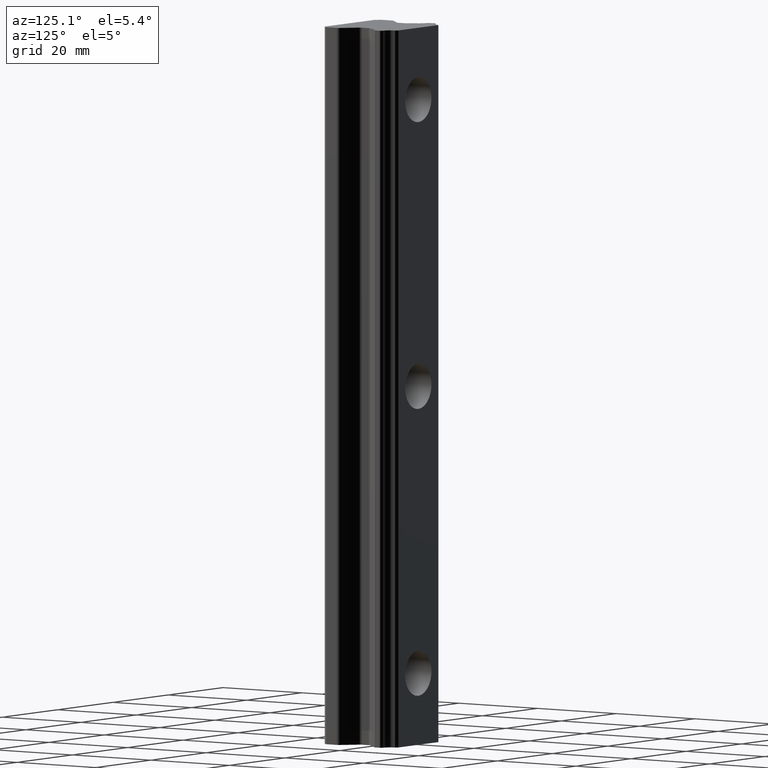
[diagram: clean part render]
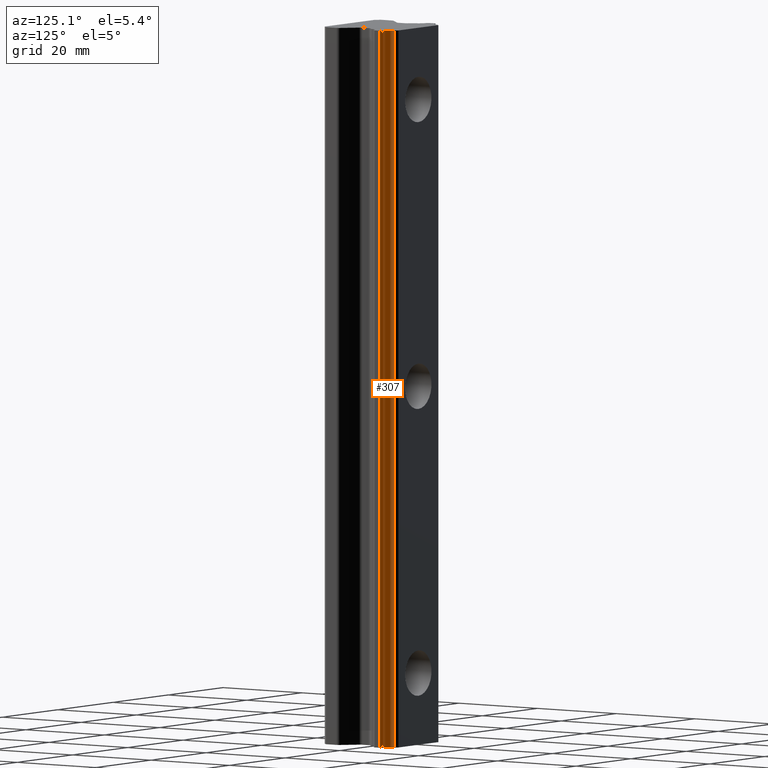
[diagram: same view with one face highlighted and labeled with its STEP entity id]
A machine part, auxiliary view. The second image highlights one B-rep face of the part: STEP entity #307.
In plain terms, the highlighted cylindrical surface (edge-blend (fillet) strip) has radius 2.03 mm, axis along (0, 0, 1).
Its self-contained STEP definition (entity closure, byte-faithful):
#218 = EDGE_CURVE ( 'NONE', #219, #220, #602, .T. ) ;
#219 = VERTEX_POINT ( 'NONE', #598 ) ;
#220 = VERTEX_POINT ( 'NONE', #597 ) ;
#249 = VERTEX_POINT ( 'NONE', #677 ) ;
#251 = EDGE_CURVE ( 'NONE', #249, #283, #676, .T. ) ;
#255 = ORIENTED_EDGE ( 'NONE', *, *, #218, .F. ) ;
#257 = ORIENTED_EDGE ( 'NONE', *, *, #251, .F. ) ;
#258 = ORIENTED_EDGE ( 'NONE', *, *, #322, .T. ) ;
#283 = VERTEX_POINT ( 'NONE', #682 ) ;
#307 = ADVANCED_FACE ( 'NONE', ( #756 ), #755, .F. ) ;
#308 = EDGE_LOOP ( 'NONE', ( #309, #257, #258, #255 ) ) ;
#309 = ORIENTED_EDGE ( 'NONE', *, *, #310, .F. ) ;
#310 = EDGE_CURVE ( 'NONE', #283, #219, #748, .T. ) ;
#322 = EDGE_CURVE ( 'NONE', #249, #220, #788, .T. ) ;
#597 = CARTESIAN_POINT ( 'NONE',  ( 7.785406885118337800, -0.6775727250147337600, -75.00000000000000000 ) ) ;
#598 = CARTESIAN_POINT ( 'NONE',  ( 7.785406885118337800, -0.6775727250147337600, 75.00000000000000000 ) ) ;
#599 = DIRECTION ( 'NONE',  ( 0.0000000000000000000, 0.0000000000000000000, -1.000000000000000000 ) ) ;
#600 = VECTOR ( 'NONE', #599, 1000.000000000000000 ) ;
#601 = CARTESIAN_POINT ( 'NONE',  ( 7.785406885112868400, -0.6775727249801463100, -75.00000000000000000 ) ) ;
#602 = LINE ( 'NONE', #601, #600 ) ;
#673 = DIRECTION ( 'NONE',  ( 0.0000000000000000000, 0.0000000000000000000, 1.000000000000000000 ) ) ;
#674 = VECTOR ( 'NONE', #673, 1000.000000000000000 ) ;
#675 = CARTESIAN_POINT ( 'NONE',  ( 9.402727675024349800, -2.294893514888143300, -75.00000000000000000 ) ) ;
#676 = LINE ( 'NONE', #675, #674 ) ;
#677 = CARTESIAN_POINT ( 'NONE',  ( 9.402727674987495700, -2.294893514882173900, -75.00000000000000000 ) ) ;
#682 = CARTESIAN_POINT ( 'NONE',  ( 9.402727674987495700, -2.294893514882173900, 75.00000000000000000 ) ) ;
#745 = DIRECTION ( 'NONE',  ( 1.000000000000000000, 0.0000000000000000000, 0.0000000000000000000 ) ) ;
#746 = DIRECTION ( 'NONE',  ( 0.0000000000000000000, 0.0000000000000000000, -1.000000000000000000 ) ) ;
#747 = AXIS2_PLACEMENT_3D ( 'NONE', #754, #746, #745 ) ;
#748 = CIRCLE ( 'NONE', #747, 2.030000000000000700 ) ;
#750 = DIRECTION ( 'NONE',  ( 1.000000000000000000, 0.0000000000000000000, 0.0000000000000000000 ) ) ;
#751 = DIRECTION ( 'NONE',  ( 0.0000000000000000000, 0.0000000000000000000, 1.000000000000000000 ) ) ;
#752 = CARTESIAN_POINT ( 'NONE',  ( 9.780034550117999700, -0.3002658498822000100, -75.00000000000000000 ) ) ;
#753 = AXIS2_PLACEMENT_3D ( 'NONE', #752, #751, #750 ) ;
#754 = CARTESIAN_POINT ( 'NONE',  ( 9.780034550117999700, -0.3002658498822000100, 75.00000000000000000 ) ) ;
#755 = CYLINDRICAL_SURFACE ( 'NONE', #753, 2.030000000000000700 ) ;
#756 = FACE_OUTER_BOUND ( 'NONE', #308, .T. ) ;
#784 = DIRECTION ( 'NONE',  ( 1.000000000000000000, 0.0000000000000000000, 0.0000000000000000000 ) ) ;
#785 = DIRECTION ( 'NONE',  ( 0.0000000000000000000, 0.0000000000000000000, -1.000000000000000000 ) ) ;
#786 = CARTESIAN_POINT ( 'NONE',  ( 9.780034550117999700, -0.3002658498822000100, -75.00000000000000000 ) ) ;
#787 = AXIS2_PLACEMENT_3D ( 'NONE', #786, #785, #784 ) ;
#788 = CIRCLE ( 'NONE', #787, 2.030000000000000700 ) ;